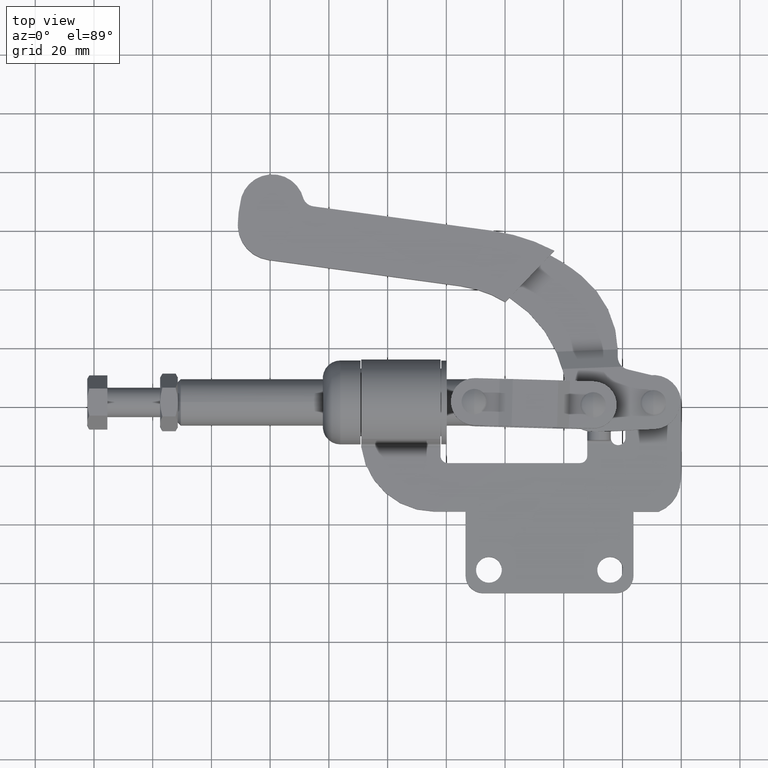
[diagram: clean part render]
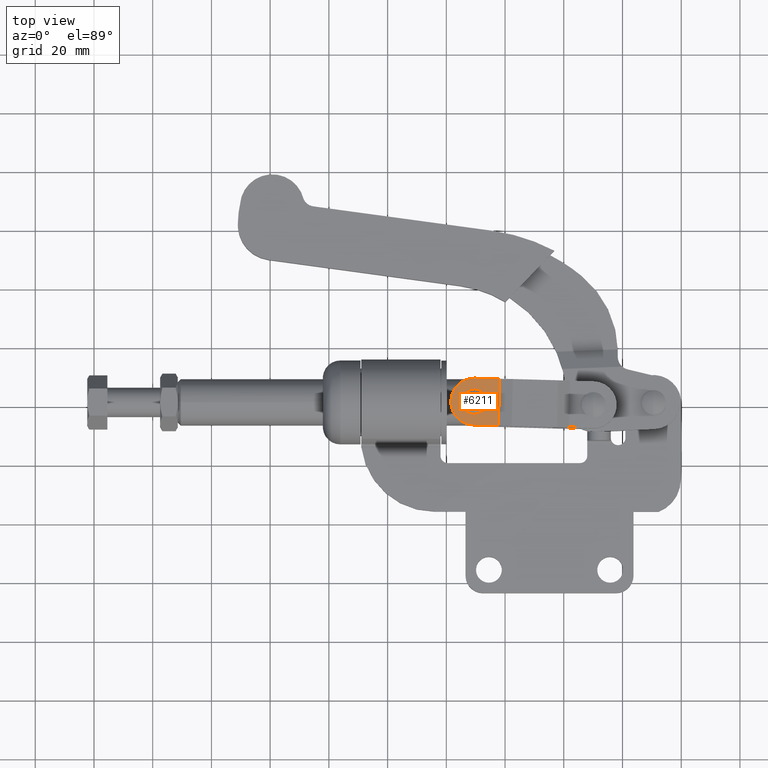
[diagram: same view with one face highlighted and labeled with its STEP entity id]
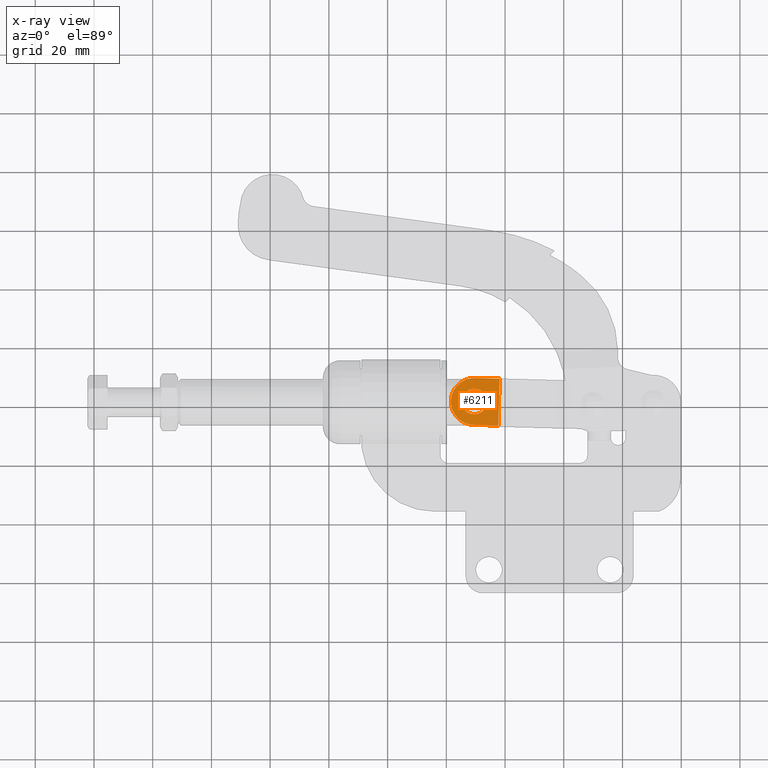
[diagram: x-ray of the same camera — body ghosted, the highlighted face saturated]
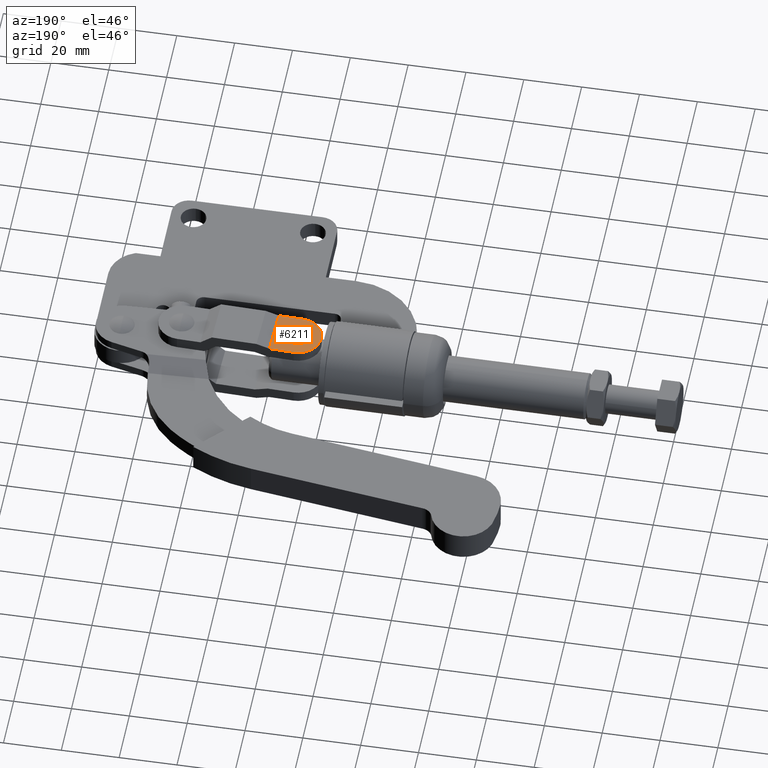
[diagram: same view with one face highlighted and labeled with its STEP entity id]
A machine part, top view. The second image highlights one B-rep face of the part: STEP entity #6211.
The next image is the same camera in x-ray: the body ghosted, the highlighted face saturated — about 0% of this face is hidden behind the body in this view.
A second angle (auxiliary view) of the same face is appended — the face is thin or edge-on in the first view.
In plain terms, the highlighted planar face has unit normal (0, 0, -1).
Its self-contained STEP definition (entity closure, byte-faithful):
#23 = EDGE_CURVE ( 'NONE', #8032, #3928, #173, .T. ) ;
#45 = VECTOR ( 'NONE', #712, 1000.000000000000100 ) ;
#173 = CIRCLE ( 'NONE', #3960, 8.000000000000001800 ) ;
#207 = CIRCLE ( 'NONE', #7854, 8.000000000000001800 ) ;
#606 = CARTESIAN_POINT ( 'NONE',  ( -70.68502237997570600, 33.49289788806675000, 11.85000000000000000 ) ) ;
#712 = DIRECTION ( 'NONE',  ( 0.02691358024692456700, 0.9996377639916832500, 1.214801189592771400E-016 ) ) ;
#776 = AXIS2_PLACEMENT_3D ( 'NONE', #3375, #7420, #2652 ) ;
#930 = CARTESIAN_POINT ( 'NONE',  ( -70.46971373799989600, 37.15987298107826600, 11.85000000000000000 ) ) ;
#960 = EDGE_LOOP ( 'NONE', ( #6357, #6124 ) ) ;
#982 = VERTEX_POINT ( 'NONE', #4364 ) ;
#1146 = LINE ( 'NONE', #4438, #3401 ) ;
#1411 = DIRECTION ( 'NONE',  ( 3.235760592315507000E-015, 3.440667993655728600E-017, -1.000000000000000000 ) ) ;
#1874 = DIRECTION ( 'NONE',  ( 3.235760592315507000E-015, 3.440667993655728600E-017, -1.000000000000000000 ) ) ;
#1920 = DIRECTION ( 'NONE',  ( -3.235760592315507000E-015, -3.440667993655728600E-017, 1.000000000000000000 ) ) ;
#2252 = DIRECTION ( 'NONE',  ( 0.9996377639916832500, -0.02691358024692457100, 3.233662476373173100E-015 ) ) ;
#2338 = EDGE_LOOP ( 'NONE', ( #4147, #4798, #3549, #6984, #8398 ) ) ;
#2407 = EDGE_CURVE ( 'NONE', #6490, #2468, #5474, .T. ) ;
#2468 = VERTEX_POINT ( 'NONE', #6016 ) ;
#2652 = DIRECTION ( 'NONE',  ( -1.000000000000000000, 0.0000000000000000000, -3.204937810639483800E-015 ) ) ;
#2774 = CARTESIAN_POINT ( 'NONE',  ( -70.25440509602442800, 49.48710211193368000, 11.85000000000000000 ) ) ;
#3070 = VERTEX_POINT ( 'NONE', #930 ) ;
#3375 = CARTESIAN_POINT ( 'NONE',  ( -70.46971373799988200, 41.49000000000016500, 11.84999999999999800 ) ) ;
#3379 = EDGE_CURVE ( 'NONE', #2468, #3928, #6542, .T. ) ;
#3401 = VECTOR ( 'NONE', #5103, 1000.000000000000100 ) ;
#3488 = DIRECTION ( 'NONE',  ( 0.9996377639916833600, -0.02691358024692422400, 3.252606517456512500E-015 ) ) ;
#3549 = ORIENTED_EDGE ( 'NONE', *, *, #2407, .T. ) ;
#3599 = PLANE ( 'NONE',  #5573 ) ;
#3736 = AXIS2_PLACEMENT_3D ( 'NONE', #6002, #1920, #6673 ) ;
#3928 = VERTEX_POINT ( 'NONE', #2774 ) ;
#3960 = AXIS2_PLACEMENT_3D ( 'NONE', #5448, #1411, #3488 ) ;
#4147 = ORIENTED_EDGE ( 'NONE', *, *, #8118, .F. ) ;
#4281 = CARTESIAN_POINT ( 'NONE',  ( -62.27514518943427600, 33.26647596525883400, 11.85000000000002500 ) ) ;
#4364 = CARTESIAN_POINT ( 'NONE',  ( -70.46971373799989600, 45.82012701892206500, 11.85000000000000000 ) ) ;
#4438 = CARTESIAN_POINT ( 'NONE',  ( -62.27514518943427600, 33.26647596525883400, 11.85000000000002500 ) ) ;
#4541 = VECTOR ( 'NONE', #8295, 1000.000000000000100 ) ;
#4798 = ORIENTED_EDGE ( 'NONE', *, *, #7407, .F. ) ;
#5103 = DIRECTION ( 'NONE',  ( -0.9996377639916832500, 0.02691358024692456700, -3.233662476373172700E-015 ) ) ;
#5226 = CARTESIAN_POINT ( 'NONE',  ( -62.27514518943427600, 33.26647596525883400, 11.85000000000002500 ) ) ;
#5303 = CARTESIAN_POINT ( 'NONE',  ( -61.84452790548348100, 49.26068018912577200, 11.85000000000003000 ) ) ;
#5448 = CARTESIAN_POINT ( 'NONE',  ( -70.46971373799986800, 41.49000000000022200, 11.85000000000000300 ) ) ;
#5474 = LINE ( 'NONE', #5226, #45 ) ;
#5539 = EDGE_CURVE ( 'NONE', #3070, #982, #6935, .T. ) ;
#5573 = AXIS2_PLACEMENT_3D ( 'NONE', #4281, #6317, #2252 ) ;
#5952 = CARTESIAN_POINT ( 'NONE',  ( -70.46971373799986800, 41.49000000000022200, 11.85000000000000300 ) ) ;
#6002 = CARTESIAN_POINT ( 'NONE',  ( -70.46971373799988200, 41.49000000000016500, 11.84999999999999800 ) ) ;
#6016 = CARTESIAN_POINT ( 'NONE',  ( -61.84452790548348100, 49.26068018912577200, 11.85000000000003000 ) ) ;
#6124 = ORIENTED_EDGE ( 'NONE', *, *, #5539, .F. ) ;
#6211 = ADVANCED_FACE ( 'NONE', ( #7347, #7136 ), #3599, .F. ) ;
#6317 = DIRECTION ( 'NONE',  ( 3.235760592315505000E-015, 3.440667993655735400E-017, -1.000000000000000000 ) ) ;
#6357 = ORIENTED_EDGE ( 'NONE', *, *, #8703, .F. ) ;
#6490 = VERTEX_POINT ( 'NONE', #7528 ) ;
#6539 = CARTESIAN_POINT ( 'NONE',  ( -78.46681584993334000, 41.70530864197561300, 11.84999999999997700 ) ) ;
#6542 = LINE ( 'NONE', #5303, #4541 ) ;
#6617 = DIRECTION ( 'NONE',  ( 0.9996377639916833600, -0.02691358024692422400, 3.252606517456512500E-015 ) ) ;
#6673 = DIRECTION ( 'NONE',  ( -1.000000000000000000, 0.0000000000000000000, -3.204937810639483800E-015 ) ) ;
#6935 = CIRCLE ( 'NONE', #776, 4.330127018921908500 ) ;
#6984 = ORIENTED_EDGE ( 'NONE', *, *, #3379, .T. ) ;
#7136 = FACE_OUTER_BOUND ( 'NONE', #2338, .T. ) ;
#7347 = FACE_BOUND ( 'NONE', #960, .T. ) ;
#7407 = EDGE_CURVE ( 'NONE', #6490, #8667, #1146, .T. ) ;
#7420 = DIRECTION ( 'NONE',  ( -3.235760592315507000E-015, -3.440667993655728600E-017, 1.000000000000000000 ) ) ;
#7528 = CARTESIAN_POINT ( 'NONE',  ( -62.27514518943427600, 33.26647596525883400, 11.85000000000002500 ) ) ;
#7854 = AXIS2_PLACEMENT_3D ( 'NONE', #5952, #1874, #6617 ) ;
#8032 = VERTEX_POINT ( 'NONE', #6539 ) ;
#8118 = EDGE_CURVE ( 'NONE', #8667, #8032, #207, .T. ) ;
#8295 = DIRECTION ( 'NONE',  ( -0.9996377639916832500, 0.02691358024692456700, -3.233662476373172700E-015 ) ) ;
#8398 = ORIENTED_EDGE ( 'NONE', *, *, #23, .F. ) ;
#8667 = VERTEX_POINT ( 'NONE', #606 ) ;
#8678 = CIRCLE ( 'NONE', #3736, 4.330127018921908500 ) ;
#8703 = EDGE_CURVE ( 'NONE', #982, #3070, #8678, .T. ) ;